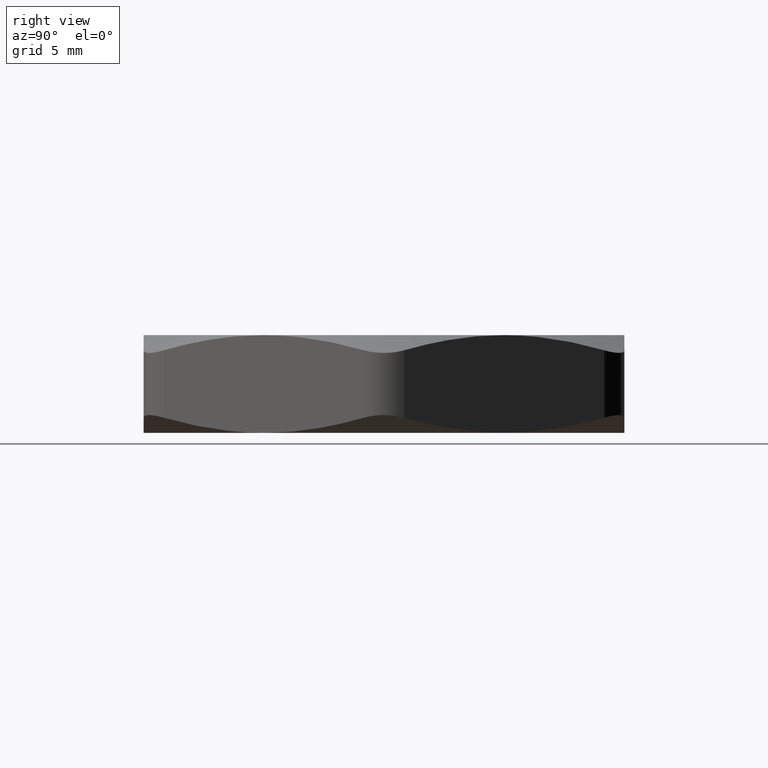
[diagram: clean part render]
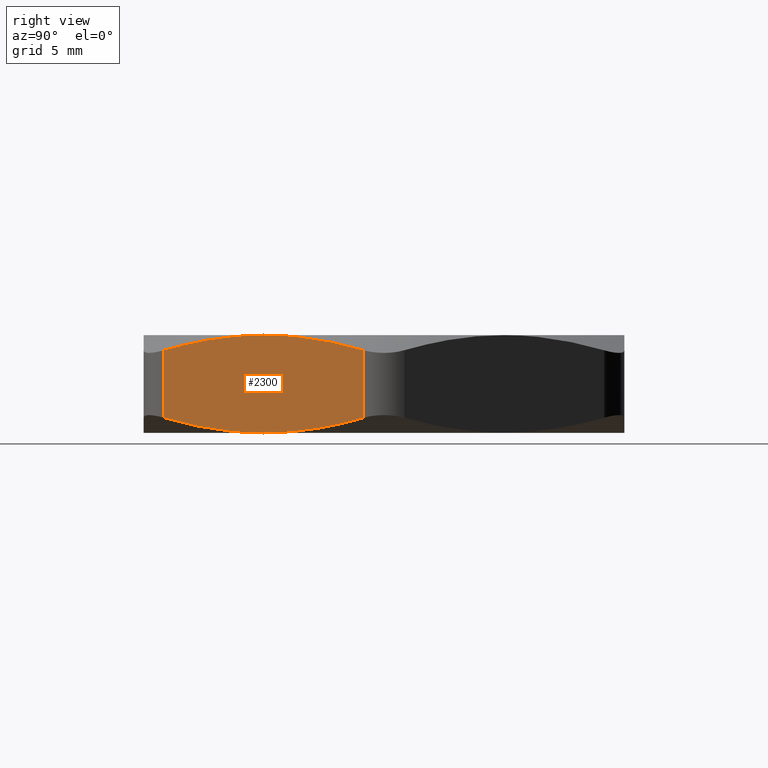
[diagram: same view with one face highlighted and labeled with its STEP entity id]
A machine part, right view. The second image highlights one B-rep face of the part: STEP entity #2300.
In plain terms, the highlighted planar face has unit normal (-0.866, 0.5, 0).
Its self-contained STEP definition (entity closure, byte-faithful):
#564 = B_SPLINE_CURVE_WITH_KNOTS ( 'NONE', 3,
 ( #746, #749, #735, #747, #745, #748, #750, #757 ),
 .UNSPECIFIED., .F., .F.,
 ( 4, 2, 2, 4 ),
 ( 0.008754818042027736500, 0.01055895048476075500, 0.01236308292749377400, 0.01597134781295981100 ),
 .UNSPECIFIED. ) ;
#565 = CARTESIAN_POINT ( 'NONE',  ( 0.3695041722813826600, -0.5399999999999614000, 0.03713458295163441600 ) ) ;
#566 = DIRECTION ( 'NONE',  ( 0.0000000000000000000, 0.0000000000000000000, -1.000000000000000000 ) ) ;
#567 = VECTOR ( 'NONE', #566, 39.37007874015748100 ) ;
#663 = CARTESIAN_POINT ( 'NONE',  ( 0.5109549882328188200, -0.2950000000000000400, 0.2399999999999999900 ) ) ;
#664 = CARTESIAN_POINT ( 'NONE',  ( 0.4869353365727520600, -0.3366032570553416100, 0.2400000000000004900 ) ) ;
#665 = CARTESIAN_POINT ( 'NONE',  ( 0.4631618104060992700, -0.3777802122510521800, 0.2365731363345084100 ) ) ;
#666 = CARTESIAN_POINT ( 'NONE',  ( 0.4160412341803082500, -0.4593954443560446800, 0.2237814809296384000 ) ) ;
#667 = CARTESIAN_POINT ( 'NONE',  ( 0.3926923628449136600, -0.4998368758083363600, 0.2144420472518744600 ) ) ;
#668 = CARTESIAN_POINT ( 'NONE',  ( 0.3695041722813604500, -0.5399999999999999200, 0.2028654170483544200 ) ) ;
#669 = CARTESIAN_POINT ( 'NONE',  ( 0.3695041722813604500, -0.5399999999999999200, 0.2399999999999999900 ) ) ;
#670 = LINE ( 'NONE', #669, #567 ) ;
#671 = CARTESIAN_POINT ( 'NONE',  ( 0.3695041722813604500, -0.5399999999999999200, 0.2028654170483544200 ) ) ;
#672 = B_SPLINE_CURVE_WITH_KNOTS ( 'NONE', 3,
 ( #668, #667, #666, #665, #664, #663 ),
 .UNSPECIFIED., .F., .F.,
 ( 4, 2, 4 ),
 ( 0.001508011112065877700, 0.005131414577046800000, 0.008754818042027722600 ),
 .UNSPECIFIED. ) ;
#734 = CARTESIAN_POINT ( 'NONE',  ( 0.5109549882328188200, -0.2950000000000000400, 0.0000000000000000000 ) ) ;
#735 = CARTESIAN_POINT ( 'NONE',  ( 0.4869748205001782100, -0.3365348688869573800, 0.0008508108931426018900 ) ) ;
#745 = CARTESIAN_POINT ( 'NONE',  ( 0.4513116347115205300, -0.3983053186326807000, 0.006640736604251395000 ) ) ;
#746 = CARTESIAN_POINT ( 'NONE',  ( 0.5109549882328188200, -0.2950000000000000400, 0.0000000000000000000 ) ) ;
#747 = CARTESIAN_POINT ( 'NONE',  ( 0.4631547937755397500, -0.3777923654116792700, 0.004172620103817237900 ) ) ;
#748 = CARTESIAN_POINT ( 'NONE',  ( 0.4159643993470342200, -0.4595285261910661000, 0.01624550963464501500 ) ) ;
#749 = CARTESIAN_POINT ( 'NONE',  ( 0.4989953394545668700, -0.3157147193246111500, -4.371390310662597200E-016 ) ) ;
#750 = CARTESIAN_POINT ( 'NONE',  ( 0.3926425827318225600, -0.4999230974934167300, 0.02558280531086423000 ) ) ;
#757 = CARTESIAN_POINT ( 'NONE',  ( 0.3695041722813826600, -0.5399999999999614000, 0.03713458295163441600 ) ) ;
#758 = CARTESIAN_POINT ( 'NONE',  ( 0.5109549882328188200, -0.2950000000000000400, 0.2399999999999999900 ) ) ;
#795 = CARTESIAN_POINT ( 'NONE',  ( 0.6524058041842771800, -0.04999999999999967700, 0.2028654170483543400 ) ) ;
#796 = CARTESIAN_POINT ( 'NONE',  ( 0.6292673937338338900, -0.09007690250655066300, 0.2144171946891278400 ) ) ;
#797 = CARTESIAN_POINT ( 'NONE',  ( 0.6059455771186184100, -0.1304714738089078100, 0.2237544903653499700 ) ) ;
#798 = CARTESIAN_POINT ( 'NONE',  ( 0.5705983417541266000, -0.1916946813673028900, 0.2333592633957465000 ) ) ;
#799 = CARTESIAN_POINT ( 'NONE',  ( 0.5587551826901053800, -0.2122076345883073500, 0.2358273798961814400 ) ) ;
#800 = CARTESIAN_POINT ( 'NONE',  ( 0.5349351559654631500, -0.2534651311130360400, 0.2391491891068571500 ) ) ;
#801 = CARTESIAN_POINT ( 'NONE',  ( 0.5229146370110725500, -0.2742852806753857100, 0.2400000000000004900 ) ) ;
#802 = CARTESIAN_POINT ( 'NONE',  ( 0.5109549882328188200, -0.2950000000000000400, 0.2399999999999999900 ) ) ;
#804 = B_SPLINE_CURVE_WITH_KNOTS ( 'NONE', 3,
 ( #802, #801, #800, #799, #798, #797, #796, #795 ),
 .UNSPECIFIED., .F., .F.,
 ( 4, 2, 2, 4 ),
 ( 0.008754818042027722600, 0.01055895048476103400, 0.01236308292749434600, 0.01597134781296096600 ),
 .UNSPECIFIED. ) ;
#805 = CARTESIAN_POINT ( 'NONE',  ( 0.6524058041842771800, -0.04999999999999967700, 0.2028654170483543400 ) ) ;
#806 = DIRECTION ( 'NONE',  ( 0.0000000000000000000, 0.0000000000000000000, 1.000000000000000000 ) ) ;
#807 = VECTOR ( 'NONE', #806, 39.37007874015748100 ) ;
#808 = CARTESIAN_POINT ( 'NONE',  ( 0.6524058041842771800, -0.04999999999999980800, 0.2399999999999999900 ) ) ;
#809 = LINE ( 'NONE', #808, #807 ) ;
#863 = DIRECTION ( 'NONE',  ( -0.5000000000000001100, -0.8660254037844386000, 0.0000000000000000000 ) ) ;
#864 = DIRECTION ( 'NONE',  ( -0.8660254037844386000, 0.5000000000000001100, 0.0000000000000000000 ) ) ;
#865 = CARTESIAN_POINT ( 'NONE',  ( 0.3406366588218791600, -0.5899999999999999700, 0.2399999999999999900 ) ) ;
#866 = AXIS2_PLACEMENT_3D ( 'NONE', #865, #864, #863 ) ;
#903 = PLANE ( 'NONE',  #866 ) ;
#914 = FACE_OUTER_BOUND ( 'NONE', #2359, .T. ) ;
#974 = CARTESIAN_POINT ( 'NONE',  ( 0.5109549882328188200, -0.2950000000000000400, 0.0000000000000000000 ) ) ;
#975 = CARTESIAN_POINT ( 'NONE',  ( 0.5349746398928854100, -0.2533967429446585300, -4.391232224190798200E-016 ) ) ;
#976 = CARTESIAN_POINT ( 'NONE',  ( 0.5587481660595383600, -0.2122197877489477000, 0.003426863665491657500 ) ) ;
#977 = CARTESIAN_POINT ( 'NONE',  ( 0.6058687422853293900, -0.1306045556439552600, 0.01621851907036170000 ) ) ;
#978 = CARTESIAN_POINT ( 'NONE',  ( 0.6292176136207237000, -0.09016312419166332100, 0.02555795274812555600 ) ) ;
#979 = CARTESIAN_POINT ( 'NONE',  ( 0.6524058041842771800, -0.04999999999999974600, 0.03713458295164567800 ) ) ;
#980 = CARTESIAN_POINT ( 'NONE',  ( 0.6524058041842771800, -0.04999999999999974600, 0.03713458295164567800 ) ) ;
#981 = B_SPLINE_CURVE_WITH_KNOTS ( 'NONE', 3,
 ( #979, #978, #977, #976, #975, #974 ),
 .UNSPECIFIED., .F., .F.,
 ( 4, 2, 4 ),
 ( 0.001508011112065877700, 0.005131414577046807000, 0.008754818042027736500 ),
 .UNSPECIFIED. ) ;
#2149 = VERTEX_POINT ( 'NONE', #734 ) ;
#2207 = EDGE_CURVE ( 'NONE', #2208, #2237, #672, .T. ) ;
#2208 = VERTEX_POINT ( 'NONE', #671 ) ;
#2209 = ORIENTED_EDGE ( 'NONE', *, *, #2210, .T. ) ;
#2210 = EDGE_CURVE ( 'NONE', #2208, #2211, #670, .T. ) ;
#2211 = VERTEX_POINT ( 'NONE', #565 ) ;
#2212 = ORIENTED_EDGE ( 'NONE', *, *, #2213, .F. ) ;
#2213 = EDGE_CURVE ( 'NONE', #2149, #2211, #564, .T. ) ;
#2237 = VERTEX_POINT ( 'NONE', #758 ) ;
#2263 = ORIENTED_EDGE ( 'NONE', *, *, #2264, .F. ) ;
#2264 = EDGE_CURVE ( 'NONE', #2265, #2149, #981, .T. ) ;
#2265 = VERTEX_POINT ( 'NONE', #980 ) ;
#2266 = ORIENTED_EDGE ( 'NONE', *, *, #2278, .T. ) ;
#2278 = EDGE_CURVE ( 'NONE', #2265, #2279, #809, .T. ) ;
#2279 = VERTEX_POINT ( 'NONE', #805 ) ;
#2280 = ORIENTED_EDGE ( 'NONE', *, *, #2281, .F. ) ;
#2281 = EDGE_CURVE ( 'NONE', #2237, #2279, #804, .T. ) ;
#2300 = ADVANCED_FACE ( 'NONE', ( #914 ), #903, .F. ) ;
#2356 = ORIENTED_EDGE ( 'NONE', *, *, #2207, .F. ) ;
#2359 = EDGE_LOOP ( 'NONE', ( #2263, #2266, #2280, #2356, #2209, #2212 ) ) ;